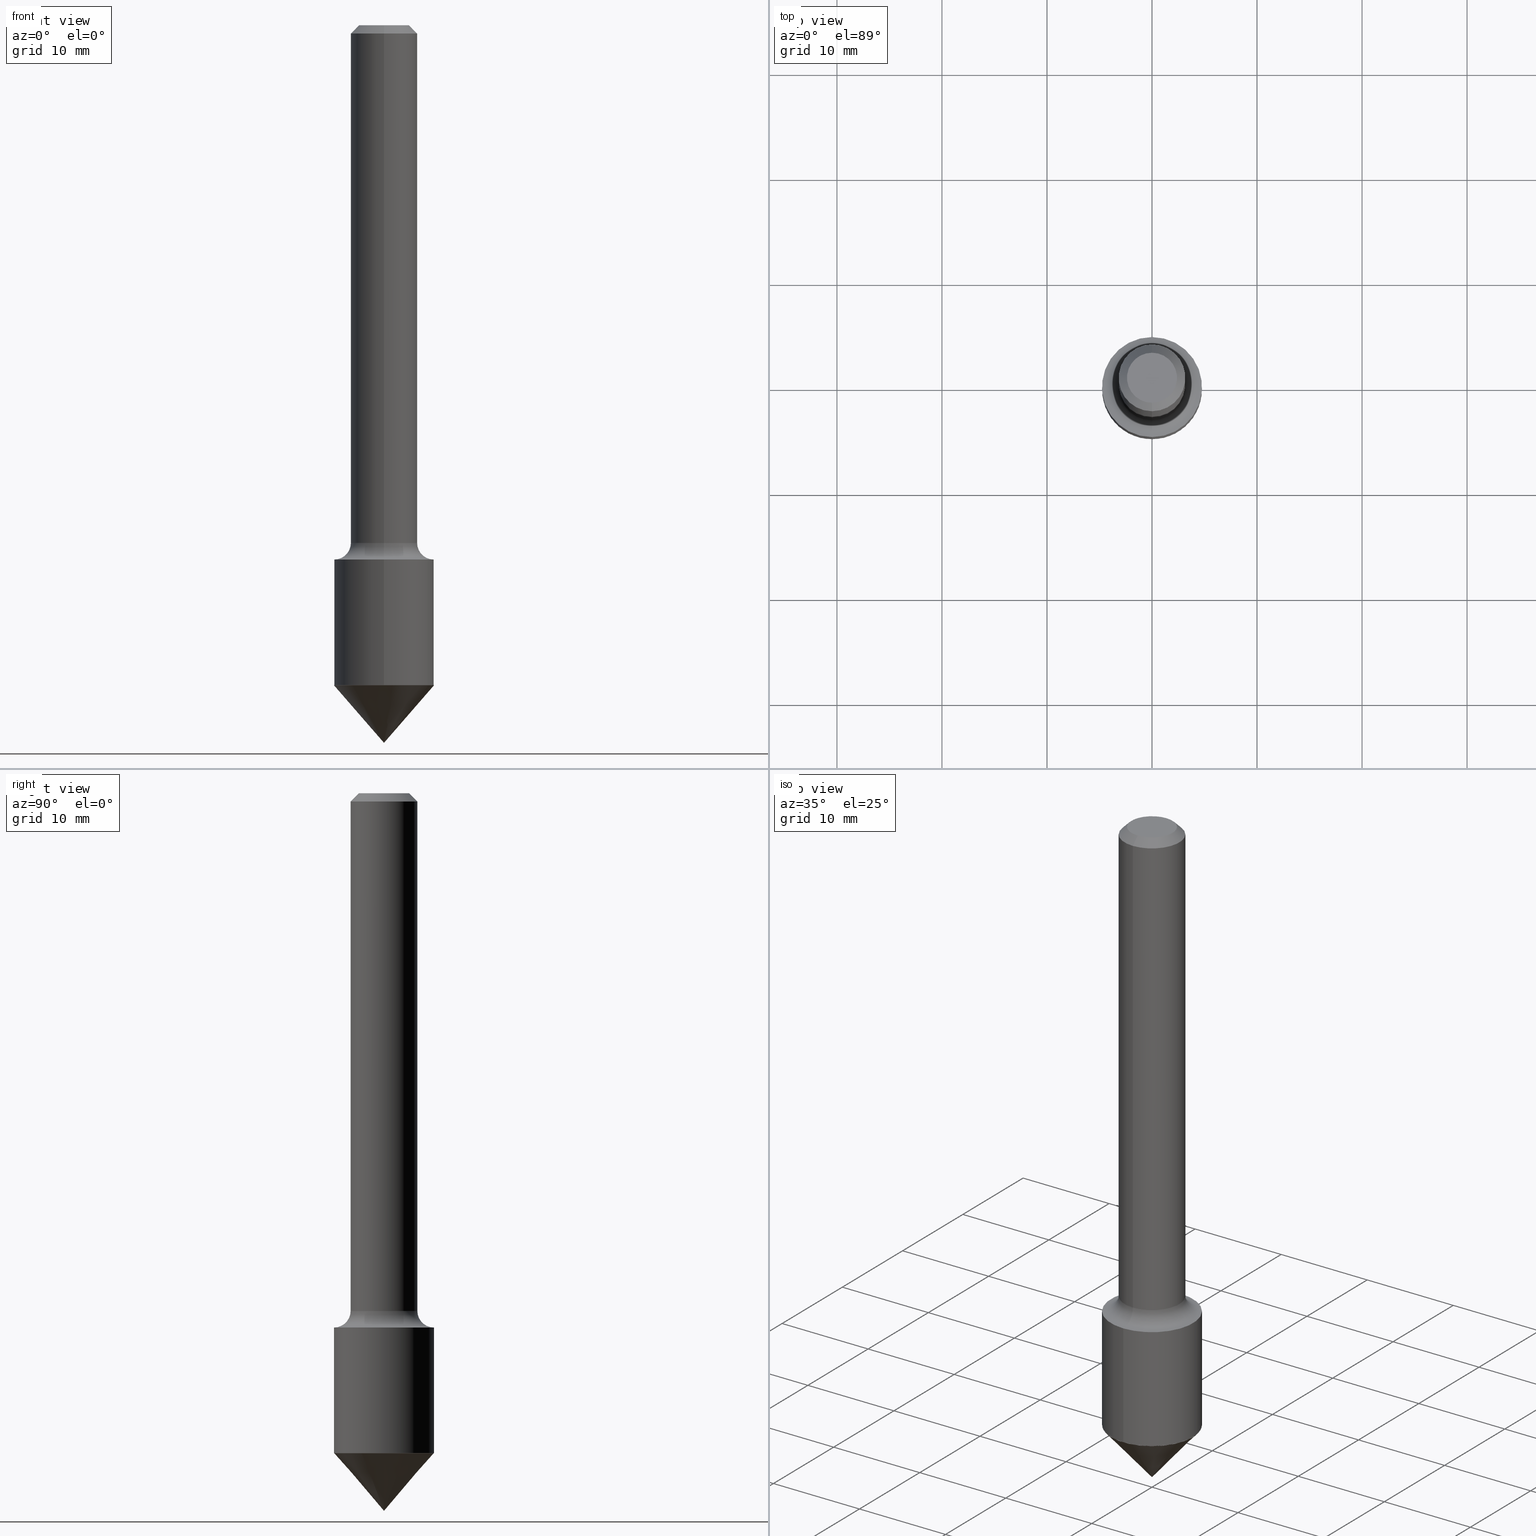
[diagram: canonical four-view strip — front | top / right | iso, engineering-drawing reading convention]
A machine part, canonical four-view strip (front | top / right | iso — engineering-drawing reading convention). The complete STEP part file that produces these views, byte-faithful:
ISO-10303-21;
HEADER;
FILE_DESCRIPTION (( 'STEP AP203' ),
    '1' );
FILE_NAME ('74110.STEP',
    '2024-03-01T13:00:25',
    ( '' ),
    ( '' ),
    'SwSTEP 2.0',
    'SolidWorks 2023',
    '' );
FILE_SCHEMA (( 'CONFIG_CONTROL_DESIGN' ));
ENDSEC;

DATA;
#1 = APPLICATION_PROTOCOL_DEFINITION ( 'international standard', 'config_control_design', 1994, #390 ) ;
#2 = EDGE_CURVE ( 'NONE', #431, #487, #122, .T. ) ;
#3 = DIRECTION ( 'NONE',  ( 2.438088387897960049E-29, -3.491481338843145188E-15, -1.000000000000000000 ) ) ;
#4 = PERSON_AND_ORGANIZATION ( #411, #24 ) ;
#5 = CIRCLE ( 'NONE', #206, 0.06249999999999912570 ) ;
#6 = CARTESIAN_POINT ( 'NONE',  ( -0.1870000000000001938, -7.330560327267809130E-15, -2.473805923646060556 ) ) ;
#7 = ORIENTED_EDGE ( 'NONE', *, *, #482, .F. ) ;
#8 = DIRECTION ( 'NONE',  ( 2.445468806185136597E-29, -3.491481338843145583E-15, -1.000000000000000000 ) ) ;
#9 = CARTESIAN_POINT ( 'NONE',  ( 1.110223024625203675E-15, 0.1249999999999934774, -1.940500000000001224 ) ) ;
#10 = EDGE_LOOP ( 'NONE', ( #304, #405, #432, #345 ) ) ;
#11 = EDGE_CURVE ( 'NONE', #174, #491, #100, .T. ) ;
#12 = DIRECTION ( 'NONE',  ( -2.429224719885951237E-29, 3.514743794979554009E-15, 1.000000000000000000 ) ) ;
#13 = ORIENTED_EDGE ( 'NONE', *, *, #157, .T. ) ;
#14 = AXIS2_PLACEMENT_3D ( 'NONE', #203, #465, #50 ) ;
#15 = CARTESIAN_POINT ( 'NONE',  ( 6.529663577209082975E-29, -9.461750806698696215E-15, -2.689999999999999947 ) ) ;
#16 = CONICAL_SURFACE ( 'NONE', #472, 0.1874999999999996947, 0.7155849933176727795 ) ;
#17 = PERSON_AND_ORGANIZATION ( #411, #24 ) ;
#18 = LINE ( 'NONE', #406, #116 ) ;
#19 = PERSON_AND_ORGANIZATION ( #411, #24 ) ;
#20 = ORIENTED_EDGE ( 'NONE', *, *, #30, .T. ) ;
#21 = EDGE_CURVE ( 'NONE', #383, #174, #237, .T. ) ;
#22 = PERSON_AND_ORGANIZATION_ROLE ( 'classification_officer' ) ;
#23 = CIRCLE ( 'NONE', #324, 0.1870000000000001938 ) ;
#24 = ORGANIZATION ( 'UNSPECIFIED', 'UNSPECIFIED', '' ) ;
#25 = AXIS2_PLACEMENT_3D ( 'NONE', #85, #138, #439 ) ;
#26 = ADVANCED_FACE ( 'NONE', ( #340 ), #155, .T. ) ;
#27 = CONICAL_SURFACE ( 'NONE', #455, 0.1870000000000001938, 0.7853981633973459164 ) ;
#28 = CONICAL_SURFACE ( 'NONE', #480, 0.1870000000000001938, 0.7853981633973459164 ) ;
#29 = FACE_OUTER_BOUND ( 'NONE', #380, .T. ) ;
#30 = EDGE_CURVE ( 'NONE', #491, #174, #332, .T. ) ;
#31 = FACE_OUTER_BOUND ( 'NONE', #44, .T. ) ;
#32 = ORIENTED_EDGE ( 'NONE', *, *, #166, .F. ) ;
#33 = ORIENTED_EDGE ( 'NONE', *, *, #356, .T. ) ;
#34 = APPLICATION_CONTEXT ( 'configuration controlled 3d designs of mechanical parts and assemblies' ) ;
#35 = DIRECTION ( 'NONE',  ( -6.982962677686265133E-15, -1.000000000000000000, 2.913971193241887077E-15 ) ) ;
#36 = LOCAL_TIME ( 8, 0, 25.00000000000000000, #106 ) ;
#37 = ORIENTED_EDGE ( 'NONE', *, *, #482, .T. ) ;
#38 = FACE_OUTER_BOUND ( 'NONE', #402, .T. ) ;
#39 = EDGE_CURVE ( 'NONE', #395, #473, #243, .T. ) ;
#40 = DIRECTION ( 'NONE',  ( -6.982962677686266711E-15, -1.000000000000000000, 2.913971193241888261E-15 ) ) ;
#41 = ORIENTED_EDGE ( 'NONE', *, *, #178, .T. ) ;
#42 = DIRECTION ( 'NONE',  ( -6.982962677686265922E-15, -1.000000000000000000, 3.517254291842738968E-15 ) ) ;
#43 = LENGTH_MEASURE_WITH_UNIT ( LENGTH_MEASURE( 0.02539999999999999897 ), #466 );
#44 = EDGE_LOOP ( 'NONE', ( #120, #57, #323, #182 ) ) ;
#45 = FACE_OUTER_BOUND ( 'NONE', #175, .T. ) ;
#46 = DIRECTION ( 'NONE',  ( -2.445468806185136597E-29, 3.491481338843145583E-15, 1.000000000000000000 ) ) ;
#47 = AXIS2_PLACEMENT_3D ( 'NONE', #240, #82, #170 ) ;
#48 = CIRCLE ( 'NONE', #442, 0.09379999999999999449 ) ;
#49 = ORIENTED_EDGE ( 'NONE', *, *, #274, .F. ) ;
#50 = DIRECTION ( 'NONE',  ( -6.982962677686265922E-15, -1.000000000000000000, 3.514743794979554009E-15 ) ) ;
#51 = PERSON_AND_ORGANIZATION ( #411, #24 ) ;
#52 = DIRECTION ( 'NONE',  ( -4.937700262163536722E-15, -0.7071067811864002461, 0.7071067811866947883 ) ) ;
#53 = CALENDAR_DATE ( 2024, 1, 3 ) ;
#54 = CIRCLE ( 'NONE', #136, 0.1250000000000000000 ) ;
#55 = FACE_OUTER_BOUND ( 'NONE', #249, .T. ) ;
#56 = DATE_TIME_ROLE ( 'classification_date' ) ;
#57 = ORIENTED_EDGE ( 'NONE', *, *, #313, .T. ) ;
#58 = DIRECTION ( 'NONE',  ( -2.445468806185136597E-29, 3.491481338843145583E-15, 1.000000000000000000 ) ) ;
#59 = PRODUCT_RELATED_PRODUCT_CATEGORY ( 'detail', '', ( #196 ) ) ;
#60 = CARTESIAN_POINT ( 'NONE',  ( 1.330491272710844197E-15, 0.1869999999999908957, -2.473805923646060556 ) ) ;
#61 = CONICAL_SURFACE ( 'NONE', #382, 0.1250000000000000000, 0.7853981633974452814 ) ;
#62 = APPROVAL_DATE_TIME ( #447, #95 ) ;
#63 = ORIENTED_EDGE ( 'NONE', *, *, #445, .T. ) ;
#64 = CARTESIAN_POINT ( 'NONE',  ( -8.728703347107842263E-16, -0.1250000000000001388, 4.393429743724446949E-16 ) ) ;
#65 = CC_DESIGN_PERSON_AND_ORGANIZATION_ASSIGNMENT ( #426, #97, ( #231 ) ) ;
#66 = DIRECTION ( 'NONE',  ( 1.000000000000000000, -6.982962677686264344E-15, 0.000000000000000000 ) ) ;
#67 = DIRECTION ( 'NONE',  ( -2.429224719885951237E-29, 3.514743794979554009E-15, 1.000000000000000000 ) ) ;
#68 = AXIS2_PLACEMENT_3D ( 'NONE', #251, #12, #202 ) ;
#69 = ADVANCED_FACE ( 'NONE', ( #421 ), #61, .T. ) ;
#70 = CC_DESIGN_SECURITY_CLASSIFICATION ( #137, ( #436 ) ) ;
#71 = CYLINDRICAL_SURFACE ( 'NONE', #117, 0.1250000000000001388 ) ;
#72 = CARTESIAN_POINT ( 'NONE',  ( 6.050837953235543055E-29, -8.638992958999271414E-15, -2.474305923646060279 ) ) ;
#73 = ORIENTED_EDGE ( 'NONE', *, *, #274, .T. ) ;
#74 = CARTESIAN_POINT ( 'NONE',  ( 4.865737113931559965E-29, -7.040031821344046815E-15, -2.003000000000000114 ) ) ;
#75 = ORIENTED_EDGE ( 'NONE', *, *, #132, .T. ) ;
#76 = DIRECTION ( 'NONE',  ( 2.429224719885951237E-29, -3.514743794979554009E-15, -1.000000000000000000 ) ) ;
#77 = ADVANCED_FACE ( 'NONE', ( #235 ), #415, .F. ) ;
#78 = AXIS2_PLACEMENT_3D ( 'NONE', #459, #201, #165 ) ;
#79 = VECTOR ( 'NONE', #448, 39.37007874015748143 ) ;
#80 = ORIENTED_EDGE ( 'NONE', *, *, #374, .T. ) ;
#81 = ORIENTED_EDGE ( 'NONE', *, *, #39, .F. ) ;
#82 = DIRECTION ( 'NONE',  ( -2.429224719885951237E-29, 3.514743794979554009E-15, 1.000000000000000000 ) ) ;
#83 = APPROVAL_STATUS ( 'not_yet_approved' ) ;
#84 = FACE_OUTER_BOUND ( 'NONE', #400, .T. ) ;
#85 = CARTESIAN_POINT ( 'NONE',  ( 0.000000000000000000, 0.000000000000000000, 0.000000000000000000 ) ) ;
#86 = ORIENTED_EDGE ( 'NONE', *, *, #322, .T. ) ;
#87 = EDGE_LOOP ( 'NONE', ( #379, #427, #260, #246 ) ) ;
#88 = LINE ( 'NONE', #275, #290 ) ;
#89 = CARTESIAN_POINT ( 'NONE',  ( -8.575622497214406564E-16, -0.1250000000000001110, -0.03119999999999975918 ) ) ;
#90 = EDGE_CURVE ( 'NONE', #487, #183, #316, .T. ) ;
#91 = LOCAL_TIME ( 8, 0, 25.00000000000000000, #130 ) ;
#92 = CARTESIAN_POINT ( 'NONE',  ( 7.579181126044216047E-31, -1.096600064033627961E-16, -0.03120000000000019980 ) ) ;
#93 = CARTESIAN_POINT ( 'NONE',  ( 1.332267629550230644E-15, 0.1874999999999926170, -1.940500000000001224 ) ) ;
#94 =( NAMED_UNIT ( * ) SI_UNIT ( $, .STERADIAN. ) SOLID_ANGLE_UNIT ( ) );
#95 = APPROVAL ( #327, 'UNSPECIFIED' ) ;
#96 = DIRECTION ( 'NONE',  ( 1.000000000000000000, -6.982962677686264344E-15, 0.000000000000000000 ) ) ;
#97 = PERSON_AND_ORGANIZATION_ROLE ( 'creator' ) ;
#98 = ADVANCED_FACE ( 'NONE', ( #396 ), #238, .T. ) ;
#99 = PERSON_AND_ORGANIZATION ( #411, #24 ) ;
#100 = CIRCLE ( 'NONE', #339, 0.1874999999999995282 ) ;
#101 = VECTOR ( 'NONE', #52, 39.37007874015748143 ) ;
#102 = COORDINATED_UNIVERSAL_TIME_OFFSET ( 5, 0, .BEHIND. ) ;
#103 = ORIENTED_EDGE ( 'NONE', *, *, #217, .F. ) ;
#104 = DIRECTION ( 'NONE',  ( 0.6560590289905054995, -1.946181298205834642E-15, 0.7547095802227735684 ) ) ;
#105 = DIRECTION ( 'NONE',  ( -6.982962677686267499E-15, -1.000000000000000000, 0.000000000000000000 ) ) ;
#106 = COORDINATED_UNIVERSAL_TIME_OFFSET ( 5, 0, .BEHIND. ) ;
#107 = ADVANCED_FACE ( 'NONE', ( #351 ), #208, .F. ) ;
#108 = CARTESIAN_POINT ( 'NONE',  ( -1.309305502066123338E-15, -0.1875000000000061895, -1.940500000000000336 ) ) ;
#109 = VECTOR ( 'NONE', #423, 39.37007874015748143 ) ;
#110 = LOCAL_TIME ( 8, 0, 25.00000000000000000, #102 ) ;
#111 = DATE_AND_TIME ( #259, #36 ) ;
#112 = MANIFOLD_SOLID_BREP ( 'Body-Move/Copy2[1]', #278 ) ;
#113 = DIRECTION ( 'NONE',  ( -0.7071067811864750752, 2.468850131081498176E-15, -0.7071067811866199593 ) ) ;
#114 = CARTESIAN_POINT ( 'NONE',  ( 6.049615218832450254E-29, -8.637247218329850699E-15, -2.473805923646060556 ) ) ;
#115 = ADVANCED_FACE ( 'NONE', ( #84 ), #27, .T. ) ;
#116 = VECTOR ( 'NONE', #253, 39.37007874015748143 ) ;
#117 = AXIS2_PLACEMENT_3D ( 'NONE', #378, #295, #456 ) ;
#118 = CARTESIAN_POINT ( 'NONE',  ( 0.1870000000000001938, -9.922748338747280272E-15, -2.473805923646060556 ) ) ;
#119 = CARTESIAN_POINT ( 'NONE',  ( 0.000000000000000000, 0.000000000000000000, 0.000000000000000000 ) ) ;
#120 = ORIENTED_EDGE ( 'NONE', *, *, #132, .F. ) ;
#121 = DIRECTION ( 'NONE',  ( -2.429224719885951237E-29, 3.514743794979554009E-15, 1.000000000000000000 ) ) ;
#122 = LINE ( 'NONE', #199, #464 ) ;
#123 = EDGE_CURVE ( 'NONE', #183, #487, #54, .T. ) ;
#124 = ADVANCED_BREP_SHAPE_REPRESENTATION ( '74110', ( #112, #444, #25 ), #164 ) ;
#125 = CARTESIAN_POINT ( 'NONE',  ( 6.049615218832450254E-29, -8.637247218329850699E-15, -2.473805923646060556 ) ) ;
#126 = APPLICATION_PROTOCOL_DEFINITION ( 'international standard', 'config_control_design', 1994, #34 ) ;
#127 = AXIS2_PLACEMENT_3D ( 'NONE', #468, #430, #172 ) ;
#128 = DIRECTION ( 'NONE',  ( -6.982962677686265922E-15, -1.000000000000000000, 3.517254291842738968E-15 ) ) ;
#129 = DESIGN_CONTEXT ( 'detailed design', #390, 'design' ) ;
#130 = COORDINATED_UNIVERSAL_TIME_OFFSET ( 5, 0, .BEHIND. ) ;
#131 = DIRECTION ( 'NONE',  ( -6.982962677686265133E-15, -1.000000000000000000, 3.514743794979553615E-15 ) ) ;
#132 = EDGE_CURVE ( 'NONE', #473, #183, #88, .T. ) ;
#133 = DIRECTION ( 'NONE',  ( 6.982962677686265922E-15, 1.000000000000000000, -3.514743794979554009E-15 ) ) ;
#134 = DIRECTION ( 'NONE',  ( -2.429224719885951237E-29, 3.514743794979554009E-15, 1.000000000000000000 ) ) ;
#135 = DIRECTION ( 'NONE',  ( -2.429224719885951237E-29, 3.514743794979554009E-15, 1.000000000000000000 ) ) ;
#136 = AXIS2_PLACEMENT_3D ( 'NONE', #92, #273, #128 ) ;
#137 = SECURITY_CLASSIFICATION ( '', '', #443 ) ;
#138 = DIRECTION ( 'NONE',  ( 0.000000000000000000, 0.000000000000000000, 1.000000000000000000 ) ) ;
#139 = ADVANCED_FACE ( 'NONE', ( #38 ), #307, .T. ) ;
#140 = DATE_AND_TIME ( #478, #279 ) ;
#141 = EDGE_LOOP ( 'NONE', ( #458, #481, #230, #80 ) ) ;
#142 = AXIS2_PLACEMENT_3D ( 'NONE', #418, #159, #40 ) ;
#143 = DIRECTION ( 'NONE',  ( -1.000000000000000000, 6.982962677686265922E-15, -4.883557194083112340E-29 ) ) ;
#144 = PERSON_AND_ORGANIZATION_ROLE ( 'design_supplier' ) ;
#145 = APPROVAL ( #209, 'UNSPECIFIED' ) ;
#146 = DIRECTION ( 'NONE',  ( 1.000000000000000000, -7.105427357601001070E-15, 4.926600391466559943E-29 ) ) ;
#147 = AXIS2_PLACEMENT_3D ( 'NONE', #299, #121, #131 ) ;
#148 = AXIS2_PLACEMENT_3D ( 'NONE', #119, #343, #264 ) ;
#149 = ORIENTED_EDGE ( 'NONE', *, *, #294, .F. ) ;
#150 = ADVANCED_FACE ( 'NONE', ( #429 ), #276, .F. ) ;
#151 = DIRECTION ( 'NONE',  ( -2.429224719885951237E-29, 3.514743794979554009E-15, 1.000000000000000000 ) ) ;
#152 = CC_DESIGN_PERSON_AND_ORGANIZATION_ASSIGNMENT ( #19, #144, ( #436 ) ) ;
#153 = CC_DESIGN_APPROVAL ( #145, ( #231 ) ) ;
#154 = CARTESIAN_POINT ( 'NONE',  ( -7.505384809562050668E-16, -0.09379999999999999449, 3.165569013653353853E-16 ) ) ;
#155 = CYLINDRICAL_SURFACE ( 'NONE', #285, 0.1874999999999995837 ) ;
#156 = DIRECTION ( 'NONE',  ( -1.000000000000000000, 6.982962677686265922E-15, -4.876176775795935793E-29 ) ) ;
#157 = EDGE_CURVE ( 'NONE', #428, #210, #198, .T. ) ;
#158 = DIRECTION ( 'NONE',  ( -6.982962677686265922E-15, -1.000000000000000000, 3.514743794979554009E-15 ) ) ;
#159 = DIRECTION ( 'NONE',  ( -2.429224719885951237E-29, 3.514743794979554009E-15, 1.000000000000000000 ) ) ;
#160 = PLANE ( 'NONE',  #212 ) ;
#161 = DATE_TIME_ROLE ( 'creation_date' ) ;
#162 = DIRECTION ( 'NONE',  ( -2.429224719885951237E-29, 3.514743794979554009E-15, 1.000000000000000000 ) ) ;
#163 = CARTESIAN_POINT ( 'NONE',  ( -1.309305502066111702E-15, -0.1875000000000082712, -2.473305923646059057 ) ) ;
#164 =( GEOMETRIC_REPRESENTATION_CONTEXT ( 3 ) GLOBAL_UNCERTAINTY_ASSIGNED_CONTEXT ( ( #389 ) ) GLOBAL_UNIT_ASSIGNED_CONTEXT ( ( #244, #309, #94 ) ) REPRESENTATION_CONTEXT ( 'NONE', 'WORKASPACE' ) );
#165 = DIRECTION ( 'NONE',  ( -6.982962677686265922E-15, -1.000000000000000000, 3.514743794979554009E-15 ) ) ;
#166 = EDGE_CURVE ( 'NONE', #305, #301, #360, .T. ) ;
#167 = CARTESIAN_POINT ( 'NONE',  ( -1.309305502066122352E-15, -0.1875000000000064670, -2.002999999999999226 ) ) ;
#168 = ORIENTED_EDGE ( 'NONE', *, *, #374, .F. ) ;
#169 = EDGE_LOOP ( 'NONE', ( #191, #438, #33, #252 ) ) ;
#170 = DIRECTION ( 'NONE',  ( -6.982962677686265922E-15, -1.000000000000000000, 2.921762560068736906E-15 ) ) ;
#171 = CC_DESIGN_PERSON_AND_ORGANIZATION_ASSIGNMENT ( #99, #219, ( #436 ) ) ;
#172 = DIRECTION ( 'NONE',  ( -6.982962677686265922E-15, -1.000000000000000000, 2.921762560068736906E-15 ) ) ;
#173 = ORIENTED_EDGE ( 'NONE', *, *, #90, .T. ) ;
#174 = VERTEX_POINT ( 'NONE', #242 ) ;
#175 = EDGE_LOOP ( 'NONE', ( #283, #73 ) ) ;
#176 = FACE_OUTER_BOUND ( 'NONE', #215, .T. ) ;
#177 = VERTEX_POINT ( 'NONE', #6 ) ;
#178 = EDGE_CURVE ( 'NONE', #177, #428, #23, .T. ) ;
#179 = ORIENTED_EDGE ( 'NONE', *, *, #281, .F. ) ;
#180 = DIRECTION ( 'NONE',  ( 6.982962677686265922E-15, 1.000000000000000000, -3.517254291842738968E-15 ) ) ;
#181 = PERSON_AND_ORGANIZATION ( #411, #24 ) ;
#182 = ORIENTED_EDGE ( 'NONE', *, *, #123, .F. ) ;
#183 = VERTEX_POINT ( 'NONE', #492 ) ;
#184 = CC_DESIGN_PERSON_AND_ORGANIZATION_ASSIGNMENT ( #51, #350, ( #196 ) ) ;
#185 = DIMENSIONAL_EXPONENTS ( 1.000000000000000000, 0.000000000000000000, 0.000000000000000000, 0.000000000000000000, 0.000000000000000000, 0.000000000000000000, 0.000000000000000000 ) ;
#186 = CIRCLE ( 'NONE', #384, 0.1250000000000002776 ) ;
#187 = FACE_OUTER_BOUND ( 'NONE', #141, .T. ) ;
#188 = CARTESIAN_POINT ( 'NONE',  ( -1.309305502066171853E-15, -0.1874999999999995837, 6.590144615586648236E-16 ) ) ;
#189 = PRODUCT_DEFINITION_SHAPE ( 'NONE', 'NONE',  #231 ) ;
#190 = EDGE_LOOP ( 'NONE', ( #222, #414, #216 ) ) ;
#191 = ORIENTED_EDGE ( 'NONE', *, *, #21, .F. ) ;
#192 = DIRECTION ( 'NONE',  ( -6.982962677686266711E-15, -1.000000000000000000, 4.370956789862811683E-15 ) ) ;
#193 = ADVANCED_FACE ( 'NONE', ( #45 ), #160, .F. ) ;
#194 = AXIS2_PLACEMENT_3D ( 'NONE', #407, #218, #470 ) ;
#195 = DIRECTION ( 'NONE',  ( -2.445468806185136597E-29, 3.491481338843145583E-15, 1.000000000000000000 ) ) ;
#196 = PRODUCT ( '74110', '74110', '', ( #391 ) ) ;
#197 = CARTESIAN_POINT ( 'NONE',  ( 0.000000000000000000, 0.000000000000000000, 0.000000000000000000 ) ) ;
#198 = LINE ( 'NONE', #355, #204 ) ;
#199 = CARTESIAN_POINT ( 'NONE',  ( -8.575622497214406564E-16, -0.1250000000000001110, -0.03119999999999975918 ) ) ;
#200 = ORIENTED_EDGE ( 'NONE', *, *, #294, .T. ) ;
#201 = DIRECTION ( 'NONE',  ( -2.429224719885950956E-29, 3.514743794979554009E-15, 1.000000000000000000 ) ) ;
#202 = DIRECTION ( 'NONE',  ( -6.982962677686266711E-15, -1.000000000000000000, 3.514743794979554798E-15 ) ) ;
#203 = CARTESIAN_POINT ( 'NONE',  ( 4.721586727676172690E-29, -6.809367637945929343E-15, -1.940500000000000780 ) ) ;
#204 = VECTOR ( 'NONE', #386, 39.37007874015748143 ) ;
#205 = DIRECTION ( 'NONE',  ( -6.982962677686265133E-15, -1.000000000000000000, 2.913971193241887077E-15 ) ) ;
#206 = AXIS2_PLACEMENT_3D ( 'NONE', #108, #143, #105 ) ;
#207 = ORIENTED_EDGE ( 'NONE', *, *, #239, .F. ) ;
#208 = PLANE ( 'NONE',  #78 ) ;
#209 = APPROVAL_STATUS ( 'not_yet_approved' ) ;
#210 = VERTEX_POINT ( 'NONE', #342 ) ;
#211 = EDGE_LOOP ( 'NONE', ( #490, #371, #268, #358 ) ) ;
#212 = AXIS2_PLACEMENT_3D ( 'NONE', #312, #469, #133 ) ;
#213 = CIRCLE ( 'NONE', #261, 0.1874999999999995837 ) ;
#214 = CC_DESIGN_APPROVAL ( #95, ( #137 ) ) ;
#215 = EDGE_LOOP ( 'NONE', ( #364, #471, #168 ) ) ;
#216 = ORIENTED_EDGE ( 'NONE', *, *, #445, .F. ) ;
#217 = EDGE_CURVE ( 'NONE', #428, #177, #434, .T. ) ;
#218 = DIRECTION ( 'NONE',  ( -2.429224719885951237E-29, 3.514743794979554009E-15, 1.000000000000000000 ) ) ;
#219 = PERSON_AND_ORGANIZATION_ROLE ( 'creator' ) ;
#220 = AXIS2_PLACEMENT_3D ( 'NONE', #289, #369, #180 ) ;
#221 = DIRECTION ( 'NONE',  ( 7.105427357601001859E-15, 1.000000000000000000, 0.000000000000000000 ) ) ;
#222 = ORIENTED_EDGE ( 'NONE', *, *, #250, .F. ) ;
#223 = ORIENTED_EDGE ( 'NONE', *, *, #90, .F. ) ;
#224 = DIRECTION ( 'NONE',  ( -2.429224719885951237E-29, 3.514743794979554009E-15, 1.000000000000000000 ) ) ;
#225 = ORIENTED_EDGE ( 'NONE', *, *, #217, .T. ) ;
#226 = CARTESIAN_POINT ( 'NONE',  ( 4.713910568938690605E-29, -6.820360334157826489E-15, -1.940500000000000780 ) ) ;
#227 = CYLINDRICAL_SURFACE ( 'NONE', #148, 0.1250000000000001388 ) ;
#228 = AXIS2_PLACEMENT_3D ( 'NONE', #433, #3, #156 ) ;
#229 = CIRCLE ( 'NONE', #404, 0.06249999999999912570 ) ;
#230 = ORIENTED_EDGE ( 'NONE', *, *, #300, .T. ) ;
#231 = PRODUCT_DEFINITION ( 'UNKNOWN', '', #436, #129 ) ;
#232 = ORIENTED_EDGE ( 'NONE', *, *, #474, .F. ) ;
#233 = CARTESIAN_POINT ( 'NONE',  ( 1.332267629550184496E-15, 0.1874999999999995837, -6.590144615586648236E-16 ) ) ;
#234 = VERTEX_POINT ( 'NONE', #461 ) ;
#235 = FACE_OUTER_BOUND ( 'NONE', #211, .T. ) ;
#236 = LOCAL_TIME ( 8, 0, 25.00000000000000000, #401 ) ;
#237 = LINE ( 'NONE', #233, #109 ) ;
#238 = CYLINDRICAL_SURFACE ( 'NONE', #147, 0.1874999999999995837 ) ;
#239 = EDGE_CURVE ( 'NONE', #319, #183, #18, .T. ) ;
#240 = CARTESIAN_POINT ( 'NONE',  ( 6.009430501921306563E-29, -8.694794020118654434E-15, -2.473805923646060112 ) ) ;
#241 = APPROVAL_ROLE ( '' ) ;
#242 = CARTESIAN_POINT ( 'NONE',  ( 1.332267629550232814E-15, 0.1874999999999924782, -2.003000000000000558 ) ) ;
#243 = CIRCLE ( 'NONE', #441, 0.1250000000000002776 ) ;
#244 =( CONVERSION_BASED_UNIT ( 'INCH', #43 ) LENGTH_UNIT ( ) NAMED_UNIT ( #185 ) );
#245 = CIRCLE ( 'NONE', #286, 0.1874999999999996947 ) ;
#246 = ORIENTED_EDGE ( 'NONE', *, *, #356, .F. ) ;
#247 = DIRECTION ( 'NONE',  ( -2.429224719885951237E-29, 3.514743794979554009E-15, 1.000000000000000000 ) ) ;
#248 = APPROVAL_DATE_TIME ( #437, #145 ) ;
#249 = EDGE_LOOP ( 'NONE', ( #149, #353, #37, #359 ) ) ;
#250 = EDGE_CURVE ( 'NONE', #254, #210, #366, .T. ) ;
#251 = CARTESIAN_POINT ( 'NONE',  ( 3.188616546869113811E-46, -4.613476114800739077E-32, -1.312606660374679235E-17 ) ) ;
#252 = ORIENTED_EDGE ( 'NONE', *, *, #11, .F. ) ;
#253 = DIRECTION ( 'NONE',  ( 4.937700262164532265E-15, 0.7071067811865429098, -0.7071067811865521247 ) ) ;
#254 = VERTEX_POINT ( 'NONE', #15 ) ;
#255 = AXIS2_PLACEMENT_3D ( 'NONE', #422, #489, #158 ) ;
#256 = ADVANCED_FACE ( 'NONE', ( #176 ), #296, .T. ) ;
#257 = APPROVAL ( #83, 'UNSPECIFIED' ) ;
#258 = FACE_OUTER_BOUND ( 'NONE', #10, .T. ) ;
#259 = CALENDAR_DATE ( 2024, 1, 3 ) ;
#260 = ORIENTED_EDGE ( 'NONE', *, *, #30, .F. ) ;
#261 = AXIS2_PLACEMENT_3D ( 'NONE', #375, #270, #35 ) ;
#262 = SHAPE_DEFINITION_REPRESENTATION ( #189, #124 ) ;
#263 = CARTESIAN_POINT ( 'NONE',  ( -0.1870000000000001938, -7.331433197602517120E-15, -2.473805923646060556 ) ) ;
#264 = DIRECTION ( 'NONE',  ( -6.982962677686265922E-15, -1.000000000000000000, 3.514743794979553615E-15 ) ) ;
#265 = AXIS2_PLACEMENT_3D ( 'NONE', #292, #195, #66 ) ;
#266 = ADVANCED_FACE ( 'NONE', ( #55 ), #377, .T. ) ;
#267 = CARTESIAN_POINT ( 'NONE',  ( -0.1874999999999996947, -7.306725329449085143E-15, -2.474305923646060279 ) ) ;
#268 = ORIENTED_EDGE ( 'NONE', *, *, #11, .T. ) ;
#269 = DIRECTION ( 'NONE',  ( -2.429224719885951237E-29, 3.514743794979554009E-15, 1.000000000000000000 ) ) ;
#270 = DIRECTION ( 'NONE',  ( -2.429224719885951237E-29, 3.514743794979554009E-15, 1.000000000000000000 ) ) ;
#271 = DIRECTION ( 'NONE',  ( -6.982962677686266711E-15, -1.000000000000000000, 2.913971193241888261E-15 ) ) ;
#272 = EDGE_LOOP ( 'NONE', ( #232, #32 ) ) ;
#273 = DIRECTION ( 'NONE',  ( -2.429224719885951237E-29, 3.514743794979554009E-15, 1.000000000000000000 ) ) ;
#274 = EDGE_CURVE ( 'NONE', #431, #319, #48, .T. ) ;
#275 = CARTESIAN_POINT ( 'NONE',  ( 8.881784197001260212E-16, 0.1250000000000001388, -4.393429743724446949E-16 ) ) ;
#276 = PLANE ( 'NONE',  #228 ) ;
#277 = DIRECTION ( 'NONE',  ( -1.000000000000000000, 6.982962677686268288E-15, 0.000000000000000000 ) ) ;
#278 = CLOSED_SHELL ( 'NONE', ( #284, #115, #413, #256, #150 ) ) ;
#279 = LOCAL_TIME ( 8, 0, 25.00000000000000000, #367 ) ;
#280 = CALENDAR_DATE ( 2024, 1, 3 ) ;
#281 = EDGE_CURVE ( 'NONE', #473, #174, #229, .T. ) ;
#282 = CARTESIAN_POINT ( 'NONE',  ( 6.050837953235543055E-29, -8.638992958999271414E-15, -2.474305923646060279 ) ) ;
#283 = ORIENTED_EDGE ( 'NONE', *, *, #451, .T. ) ;
#284 = ADVANCED_FACE ( 'NONE', ( #329 ), #16, .T. ) ;
#285 = AXIS2_PLACEMENT_3D ( 'NONE', #197, #344, #388 ) ;
#286 = AXIS2_PLACEMENT_3D ( 'NONE', #72, #46, #311 ) ;
#287 = CARTESIAN_POINT ( 'NONE',  ( 6.050837953235543055E-29, -8.638992958999271414E-15, -2.474305923646060279 ) ) ;
#288 = CALENDAR_DATE ( 2024, 1, 3 ) ;
#289 = CARTESIAN_POINT ( 'NONE',  ( 7.579181126044216047E-31, -1.096600064033627961E-16, -0.03120000000000019980 ) ) ;
#290 = VECTOR ( 'NONE', #247, 39.37007874015748143 ) ;
#291 = AXIS2_PLACEMENT_3D ( 'NONE', #282, #58, #96 ) ;
#292 = CARTESIAN_POINT ( 'NONE',  ( 6.050837953235543055E-29, -8.638992958999271414E-15, -2.474305923646060279 ) ) ;
#293 = LINE ( 'NONE', #263, #416 ) ;
#294 = EDGE_CURVE ( 'NONE', #305, #383, #372, .T. ) ;
#295 = DIRECTION ( 'NONE',  ( -2.429224719885951237E-29, 3.514743794979554009E-15, 1.000000000000000000 ) ) ;
#296 = CONICAL_SURFACE ( 'NONE', #291, 0.1874999999999996947, 0.7155849933176727795 ) ;
#297 = APPROVAL_PERSON_ORGANIZATION ( #4, #145, #314 ) ;
#298 = DIRECTION ( 'NONE',  ( -2.429224719885951237E-29, 3.514743794979554009E-15, 1.000000000000000000 ) ) ;
#299 = CARTESIAN_POINT ( 'NONE',  ( 0.000000000000000000, 0.000000000000000000, 0.000000000000000000 ) ) ;
#300 = EDGE_CURVE ( 'NONE', #177, #234, #293, .T. ) ;
#301 = VERTEX_POINT ( 'NONE', #412 ) ;
#302 = DIRECTION ( 'NONE',  ( -2.445468806185136597E-29, 3.491481338843145583E-15, 1.000000000000000000 ) ) ;
#303 = DATE_AND_TIME ( #53, #236 ) ;
#304 = ORIENTED_EDGE ( 'NONE', *, *, #2, .F. ) ;
#305 = VERTEX_POINT ( 'NONE', #60 ) ;
#306 = CARTESIAN_POINT ( 'NONE',  ( 6.049615218832450254E-29, -8.637247218329850699E-15, -2.473805923646060556 ) ) ;
#307 = CONICAL_SURFACE ( 'NONE', #376, 0.1869999999999996110, 0.7853981633972434429 ) ;
#308 = CIRCLE ( 'NONE', #68, 0.09379999999999999449 ) ;
#309 =( NAMED_UNIT ( * ) PLANE_ANGLE_UNIT ( ) SI_UNIT ( $, .RADIAN. ) );
#310 = CARTESIAN_POINT ( 'NONE',  ( 7.579181126044216047E-31, -1.096600064033627961E-16, -0.03120000000000019980 ) ) ;
#311 = DIRECTION ( 'NONE',  ( 1.000000000000000000, -6.982962677686264344E-15, 0.000000000000000000 ) ) ;
#312 = CARTESIAN_POINT ( 'NONE',  ( 6.550018991669718048E-16, 0.09379999999999999449, -3.362460012709555684E-16 ) ) ;
#313 = EDGE_CURVE ( 'NONE', #473, #395, #186, .T. ) ;
#314 = APPROVAL_ROLE ( '' ) ;
#315 = ORIENTED_EDGE ( 'NONE', *, *, #39, .T. ) ;
#316 = CIRCLE ( 'NONE', #476, 0.1250000000000000000 ) ;
#317 = APPROVAL_PERSON_ORGANIZATION ( #181, #95, #449 ) ;
#318 = CC_DESIGN_DATE_AND_TIME_ASSIGNMENT ( #111, #56, ( #137 ) ) ;
#319 = VERTEX_POINT ( 'NONE', #479 ) ;
#320 = CARTESIAN_POINT ( 'NONE',  ( 3.188616546869113811E-46, -4.613476114800739077E-32, -1.312606660374679235E-17 ) ) ;
#321 = EDGE_LOOP ( 'NONE', ( #41, #225 ) ) ;
#322 = EDGE_CURVE ( 'NONE', #395, #491, #5, .T. ) ;
#323 = ORIENTED_EDGE ( 'NONE', *, *, #336, .T. ) ;
#324 = AXIS2_PLACEMENT_3D ( 'NONE', #306, #346, #392 ) ;
#325 = TOROIDAL_SURFACE ( 'NONE', #255, 0.1874999999999993894, 0.06249999999999912570 ) ;
#326 = DIRECTION ( 'NONE',  ( -6.982962677686266711E-15, -1.000000000000000000, 4.370956789862811683E-15 ) ) ;
#327 = APPROVAL_STATUS ( 'not_yet_approved' ) ;
#328 = ADVANCED_FACE ( 'NONE', ( #258 ), #361, .T. ) ;
#329 = FACE_OUTER_BOUND ( 'NONE', #190, .T. ) ;
#330 = ORIENTED_EDGE ( 'NONE', *, *, #474, .T. ) ;
#331 = LINE ( 'NONE', #188, #424 ) ;
#332 = CIRCLE ( 'NONE', #142, 0.1874999999999995282 ) ;
#333 = CIRCLE ( 'NONE', #127, 0.1869999999999996110 ) ;
#334 = DIRECTION ( 'NONE',  ( -2.445468806185136597E-29, 3.491481338843145583E-15, 1.000000000000000000 ) ) ;
#335 = EDGE_LOOP ( 'NONE', ( #315, #75, #223, #385 ) ) ;
#336 = EDGE_CURVE ( 'NONE', #395, #487, #410, .T. ) ;
#337 = CC_DESIGN_PERSON_AND_ORGANIZATION_ASSIGNMENT ( #17, #22, ( #137 ) ) ;
#338 = LINE ( 'NONE', #267, #368 ) ;
#339 = AXIS2_PLACEMENT_3D ( 'NONE', #74, #298, #271 ) ;
#340 = FACE_OUTER_BOUND ( 'NONE', #169, .T. ) ;
#341 = CC_DESIGN_APPROVAL ( #257, ( #436 ) ) ;
#342 = CARTESIAN_POINT ( 'NONE',  ( 0.1874999999999996947, -9.925336333581432004E-15, -2.474305923646060279 ) ) ;
#343 = DIRECTION ( 'NONE',  ( -2.429224719885951237E-29, 3.514743794979554009E-15, 1.000000000000000000 ) ) ;
#344 = DIRECTION ( 'NONE',  ( -2.429224719885951237E-29, 3.514743794979554009E-15, 1.000000000000000000 ) ) ;
#345 = ORIENTED_EDGE ( 'NONE', *, *, #123, .T. ) ;
#346 = DIRECTION ( 'NONE',  ( -2.445468806185136597E-29, 3.491481338843145583E-15, 1.000000000000000000 ) ) ;
#347 = CARTESIAN_POINT ( 'NONE',  ( 4.713910568938690605E-29, -6.820360334157826489E-15, -1.940500000000000780 ) ) ;
#348 = ORIENTED_EDGE ( 'NONE', *, *, #370, .F. ) ;
#349 = CARTESIAN_POINT ( 'NONE',  ( 6.009430501921306563E-29, -8.694794020118654434E-15, -2.473805923646060112 ) ) ;
#350 = PERSON_AND_ORGANIZATION_ROLE ( 'design_owner' ) ;
#351 = FACE_OUTER_BOUND ( 'NONE', #272, .T. ) ;
#352 = CLOSED_SHELL ( 'NONE', ( #363, #69, #139, #98, #77, #394, #26, #266, #107, #193, #328, #420 ) ) ;
#353 = ORIENTED_EDGE ( 'NONE', *, *, #166, .T. ) ;
#354 = EDGE_LOOP ( 'NONE', ( #49, #475, #173, #207 ) ) ;
#355 = CARTESIAN_POINT ( 'NONE',  ( 0.1870000000000001938, -9.920160343913130118E-15, -2.473805923646060556 ) ) ;
#356 = EDGE_CURVE ( 'NONE', #463, #491, #331, .T. ) ;
#357 = LINE ( 'NONE', #393, #101 ) ;
#358 = ORIENTED_EDGE ( 'NONE', *, *, #322, .F. ) ;
#359 = ORIENTED_EDGE ( 'NONE', *, *, #457, .F. ) ;
#360 = CIRCLE ( 'NONE', #47, 0.1869999999999996110 ) ;
#361 = CONICAL_SURFACE ( 'NONE', #220, 0.1250000000000000000, 0.7853981633974452814 ) ;
#362 = APPROVAL_DATE_TIME ( #140, #257 ) ;
#363 = ADVANCED_FACE ( 'NONE', ( #381 ), #227, .T. ) ;
#364 = ORIENTED_EDGE ( 'NONE', *, *, #440, .F. ) ;
#365 = CARTESIAN_POINT ( 'NONE',  ( 0.1874999999999996947, -9.948298461065443267E-15, -2.474305923646060279 ) ) ;
#366 = LINE ( 'NONE', #365, #408 ) ;
#367 = COORDINATED_UNIVERSAL_TIME_OFFSET ( 5, 0, .BEHIND. ) ;
#368 = VECTOR ( 'NONE', #417, 39.37007874015748143 ) ;
#369 = DIRECTION ( 'NONE',  ( 2.429224719885951237E-29, -3.514743794979554009E-15, -1.000000000000000000 ) ) ;
#370 = EDGE_CURVE ( 'NONE', #463, #383, #213, .T. ) ;
#371 = ORIENTED_EDGE ( 'NONE', *, *, #281, .T. ) ;
#372 = LINE ( 'NONE', #452, #79 ) ;
#373 = CARTESIAN_POINT ( 'NONE',  ( -8.728703347107380779E-16, -0.1250000000000071054, -1.940500000000000336 ) ) ;
#374 = EDGE_CURVE ( 'NONE', #234, #210, #477, .T. ) ;
#375 = CARTESIAN_POINT ( 'NONE',  ( 6.008215889561363554E-29, -8.693036648221162400E-15, -2.473305923646059945 ) ) ;
#376 = AXIS2_PLACEMENT_3D ( 'NONE', #349, #162, #425 ) ;
#377 = CONICAL_SURFACE ( 'NONE', #194, 0.1869999999999996110, 0.7853981633972434429 ) ;
#378 = CARTESIAN_POINT ( 'NONE',  ( 0.000000000000000000, 0.000000000000000000, 0.000000000000000000 ) ) ;
#379 = ORIENTED_EDGE ( 'NONE', *, *, #370, .T. ) ;
#380 = EDGE_LOOP ( 'NONE', ( #179, #81, #86, #20 ) ) ;
#381 = FACE_OUTER_BOUND ( 'NONE', #335, .T. ) ;
#382 = AXIS2_PLACEMENT_3D ( 'NONE', #310, #76, #398 ) ;
#383 = VERTEX_POINT ( 'NONE', #453 ) ;
#384 = AXIS2_PLACEMENT_3D ( 'NONE', #226, #67, #326 ) ;
#385 = ORIENTED_EDGE ( 'NONE', *, *, #336, .F. ) ;
#386 = DIRECTION ( 'NONE',  ( 0.7071067811864750752, -7.319954787623011498E-15, -0.7071067811866199593 ) ) ;
#387 = CC_DESIGN_DATE_AND_TIME_ASSIGNMENT ( #303, #161, ( #231 ) ) ;
#388 = DIRECTION ( 'NONE',  ( -6.982962677686265133E-15, -1.000000000000000000, 3.514743794979553615E-15 ) ) ;
#389 = UNCERTAINTY_MEASURE_WITH_UNIT (LENGTH_MEASURE( 1.000000000000000082E-05 ), #244, 'distance_accuracy_value', 'NONE');
#390 = APPLICATION_CONTEXT ( 'configuration controlled 3d designs of mechanical parts and assemblies' ) ;
#391 = MECHANICAL_CONTEXT ( 'NONE', #34, 'mechanical' ) ;
#392 = DIRECTION ( 'NONE',  ( 1.000000000000000000, -6.982962677686268288E-15, 0.000000000000000000 ) ) ;
#393 = CARTESIAN_POINT ( 'NONE',  ( -1.305814020727268695E-15, -0.1870000000000082985, -2.473805923646059224 ) ) ;
#394 = ADVANCED_FACE ( 'NONE', ( #29 ), #325, .F. ) ;
#395 = VERTEX_POINT ( 'NONE', #373 ) ;
#396 = FACE_OUTER_BOUND ( 'NONE', #87, .T. ) ;
#397 = CIRCLE ( 'NONE', #409, 0.1874999999999995837 ) ;
#398 = DIRECTION ( 'NONE',  ( 6.982962677686265922E-15, 1.000000000000000000, -3.517254291842738968E-15 ) ) ;
#399 = CARTESIAN_POINT ( 'NONE',  ( 6.008215889561363554E-29, -8.693036648221162400E-15, -2.473305923646059945 ) ) ;
#400 = EDGE_LOOP ( 'NONE', ( #103, #13, #63, #460 ) ) ;
#401 = COORDINATED_UNIVERSAL_TIME_OFFSET ( 5, 0, .BEHIND. ) ;
#402 = EDGE_LOOP ( 'NONE', ( #330, #200, #348, #7 ) ) ;
#403 = DIRECTION ( 'NONE',  ( -6.982962677686266711E-15, -1.000000000000000000, 3.514743794979554798E-15 ) ) ;
#404 = AXIS2_PLACEMENT_3D ( 'NONE', #93, #146, #221 ) ;
#405 = ORIENTED_EDGE ( 'NONE', *, *, #451, .F. ) ;
#406 = CARTESIAN_POINT ( 'NONE',  ( 8.728703347107839305E-16, 0.1249999999999999029, -0.03120000000000063695 ) ) ;
#407 = CARTESIAN_POINT ( 'NONE',  ( 6.009430501921306563E-29, -8.694794020118654434E-15, -2.473805923646060112 ) ) ;
#408 = VECTOR ( 'NONE', #104, 39.37007874015748143 ) ;
#409 = AXIS2_PLACEMENT_3D ( 'NONE', #399, #135, #205 ) ;
#410 = LINE ( 'NONE', #64, #450 ) ;
#411 = PERSON ( 'UNSPECIFIED', 'UNSPECIFIED', 'UNSPECIFIED', ('UNSPECIFIED'), ('UNSPECIFIED'), ('UNSPECIFIED') ) ;
#412 = CARTESIAN_POINT ( 'NONE',  ( -1.305814020727268695E-15, -0.1870000000000082985, -2.473805923646059224 ) ) ;
#413 = ADVANCED_FACE ( 'NONE', ( #187 ), #28, .T. ) ;
#414 = ORIENTED_EDGE ( 'NONE', *, *, #440, .T. ) ;
#415 = TOROIDAL_SURFACE ( 'NONE', #14, 0.1874999999999993894, 0.06249999999999912570 ) ;
#416 = VECTOR ( 'NONE', #113, 39.37007874015748143 ) ;
#417 = DIRECTION ( 'NONE',  ( -0.6560590289905054995, 7.296634188384245269E-15, 0.7547095802227735684 ) ) ;
#418 = CARTESIAN_POINT ( 'NONE',  ( 4.865737113931559965E-29, -7.040031821344046815E-15, -2.003000000000000114 ) ) ;
#419 = DIRECTION ( 'NONE',  ( -4.851104656540949287E-15, -0.7071067811865477948, -0.7071067811865472397 ) ) ;
#420 = ADVANCED_FACE ( 'NONE', ( #31 ), #71, .T. ) ;
#421 = FACE_OUTER_BOUND ( 'NONE', #354, .T. ) ;
#422 = CARTESIAN_POINT ( 'NONE',  ( 4.721586727676172690E-29, -6.809367637945929343E-15, -1.940500000000000780 ) ) ;
#423 = DIRECTION ( 'NONE',  ( -2.429224719885951237E-29, 3.514743794979554009E-15, 1.000000000000000000 ) ) ;
#424 = VECTOR ( 'NONE', #151, 39.37007874015748143 ) ;
#425 = DIRECTION ( 'NONE',  ( -6.982962677686265922E-15, -1.000000000000000000, 2.921762560068736906E-15 ) ) ;
#426 = PERSON_AND_ORGANIZATION ( #411, #24 ) ;
#427 = ORIENTED_EDGE ( 'NONE', *, *, #21, .T. ) ;
#428 = VERTEX_POINT ( 'NONE', #118 ) ;
#429 = FACE_OUTER_BOUND ( 'NONE', #321, .T. ) ;
#430 = DIRECTION ( 'NONE',  ( -2.429224719885951237E-29, 3.514743794979554009E-15, 1.000000000000000000 ) ) ;
#431 = VERTEX_POINT ( 'NONE', #154 ) ;
#432 = ORIENTED_EDGE ( 'NONE', *, *, #239, .T. ) ;
#433 = CARTESIAN_POINT ( 'NONE',  ( 1.305814020727393532E-15, 0.1869999999999915341, -2.473805923646060556 ) ) ;
#434 = CIRCLE ( 'NONE', #483, 0.1870000000000001938 ) ;
#435 = CARTESIAN_POINT ( 'NONE',  ( 6.049615218832450254E-29, -8.637247218329850699E-15, -2.473805923646060556 ) ) ;
#436 = PRODUCT_DEFINITION_FORMATION_WITH_SPECIFIED_SOURCE ( 'ANY', '', #196, .NOT_KNOWN. ) ;
#437 = DATE_AND_TIME ( #280, #91 ) ;
#438 = ORIENTED_EDGE ( 'NONE', *, *, #457, .T. ) ;
#439 = DIRECTION ( 'NONE',  ( 1.000000000000000000, 0.000000000000000000, 0.000000000000000000 ) ) ;
#440 = EDGE_CURVE ( 'NONE', #254, #234, #338, .T. ) ;
#441 = AXIS2_PLACEMENT_3D ( 'NONE', #347, #486, #192 ) ;
#442 = AXIS2_PLACEMENT_3D ( 'NONE', #320, #134, #403 ) ;
#443 = SECURITY_CLASSIFICATION_LEVEL ( 'unclassified' ) ;
#444 = MANIFOLD_SOLID_BREP ( 'Body-Move/Copy2[2]', #352 ) ;
#445 = EDGE_CURVE ( 'NONE', #210, #234, #245, .T. ) ;
#446 = DIRECTION ( 'NONE',  ( 1.000000000000000000, -6.982962677686264344E-15, 0.000000000000000000 ) ) ;
#447 = DATE_AND_TIME ( #288, #110 ) ;
#448 = DIRECTION ( 'NONE',  ( 5.024295867787032926E-15, 0.7071067811864051311, 0.7071067811866899033 ) ) ;
#449 = APPROVAL_ROLE ( '' ) ;
#450 = VECTOR ( 'NONE', #224, 39.37007874015748143 ) ;
#451 = EDGE_CURVE ( 'NONE', #319, #431, #308, .T. ) ;
#452 = CARTESIAN_POINT ( 'NONE',  ( 1.328714915871444537E-15, 0.1869999999999908957, -2.473805923646060556 ) ) ;
#453 = CARTESIAN_POINT ( 'NONE',  ( 1.332267629550239124E-15, 0.1874999999999908684, -2.473305923646060389 ) ) ;
#454 = DIRECTION ( 'NONE',  ( 2.445468806185136597E-29, -3.491481338843145583E-15, -1.000000000000000000 ) ) ;
#455 = AXIS2_PLACEMENT_3D ( 'NONE', #125, #8, #277 ) ;
#456 = DIRECTION ( 'NONE',  ( -6.982962677686265922E-15, -1.000000000000000000, 3.514743794979553615E-15 ) ) ;
#457 = EDGE_CURVE ( 'NONE', #383, #463, #397, .T. ) ;
#458 = ORIENTED_EDGE ( 'NONE', *, *, #157, .F. ) ;
#459 = CARTESIAN_POINT ( 'NONE',  ( 1.305814020727388799E-15, 0.1869999999999908957, -2.473805923646060556 ) ) ;
#460 = ORIENTED_EDGE ( 'NONE', *, *, #300, .F. ) ;
#461 = CARTESIAN_POINT ( 'NONE',  ( -0.1874999999999996947, -7.329687456933097983E-15, -2.474305923646060279 ) ) ;
#462 = PERSON_AND_ORGANIZATION ( #411, #24 ) ;
#463 = VERTEX_POINT ( 'NONE', #163 ) ;
#464 = VECTOR ( 'NONE', #419, 39.37007874015748143 ) ;
#465 = DIRECTION ( 'NONE',  ( -2.429224719885951237E-29, 3.514743794979554009E-15, 1.000000000000000000 ) ) ;
#466 =( LENGTH_UNIT ( ) NAMED_UNIT ( * ) SI_UNIT ( $, .METRE. ) );
#467 = CARTESIAN_POINT ( 'NONE',  ( 7.579181126044216047E-31, -1.096600064033627961E-16, -0.03120000000000019980 ) ) ;
#468 = CARTESIAN_POINT ( 'NONE',  ( 6.009430501921306563E-29, -8.694794020118654434E-15, -2.473805923646060112 ) ) ;
#469 = DIRECTION ( 'NONE',  ( 2.429224719885950956E-29, -3.514743794979554009E-15, -1.000000000000000000 ) ) ;
#470 = DIRECTION ( 'NONE',  ( -6.982962677686265922E-15, -1.000000000000000000, 2.921762560068736906E-15 ) ) ;
#471 = ORIENTED_EDGE ( 'NONE', *, *, #250, .T. ) ;
#472 = AXIS2_PLACEMENT_3D ( 'NONE', #287, #334, #446 ) ;
#473 = VERTEX_POINT ( 'NONE', #9 ) ;
#474 = EDGE_CURVE ( 'NONE', #301, #305, #333, .T. ) ;
#475 = ORIENTED_EDGE ( 'NONE', *, *, #2, .T. ) ;
#476 = AXIS2_PLACEMENT_3D ( 'NONE', #467, #269, #42 ) ;
#477 = CIRCLE ( 'NONE', #265, 0.1874999999999996947 ) ;
#478 = CALENDAR_DATE ( 2024, 1, 3 ) ;
#479 = CARTESIAN_POINT ( 'NONE',  ( 7.639361169388778676E-16, 0.09379999999999999449, -3.428090345728289792E-16 ) ) ;
#480 = AXIS2_PLACEMENT_3D ( 'NONE', #114, #454, #484 ) ;
#481 = ORIENTED_EDGE ( 'NONE', *, *, #178, .F. ) ;
#482 = EDGE_CURVE ( 'NONE', #301, #463, #357, .T. ) ;
#483 = AXIS2_PLACEMENT_3D ( 'NONE', #435, #302, #488 ) ;
#484 = DIRECTION ( 'NONE',  ( -1.000000000000000000, 6.982962677686268288E-15, 0.000000000000000000 ) ) ;
#485 = APPROVAL_PERSON_ORGANIZATION ( #462, #257, #241 ) ;
#486 = DIRECTION ( 'NONE',  ( -2.429224719885951237E-29, 3.514743794979554009E-15, 1.000000000000000000 ) ) ;
#487 = VERTEX_POINT ( 'NONE', #89 ) ;
#488 = DIRECTION ( 'NONE',  ( 1.000000000000000000, -6.982962677686268288E-15, 0.000000000000000000 ) ) ;
#489 = DIRECTION ( 'NONE',  ( -2.429224719885951237E-29, 3.514743794979554009E-15, 1.000000000000000000 ) ) ;
#490 = ORIENTED_EDGE ( 'NONE', *, *, #313, .F. ) ;
#491 = VERTEX_POINT ( 'NONE', #167 ) ;
#492 = CARTESIAN_POINT ( 'NONE',  ( 8.728703347107839305E-16, 0.1249999999999999029, -0.03120000000000063695 ) ) ;
ENDSEC;
END-ISO-10303-21;
